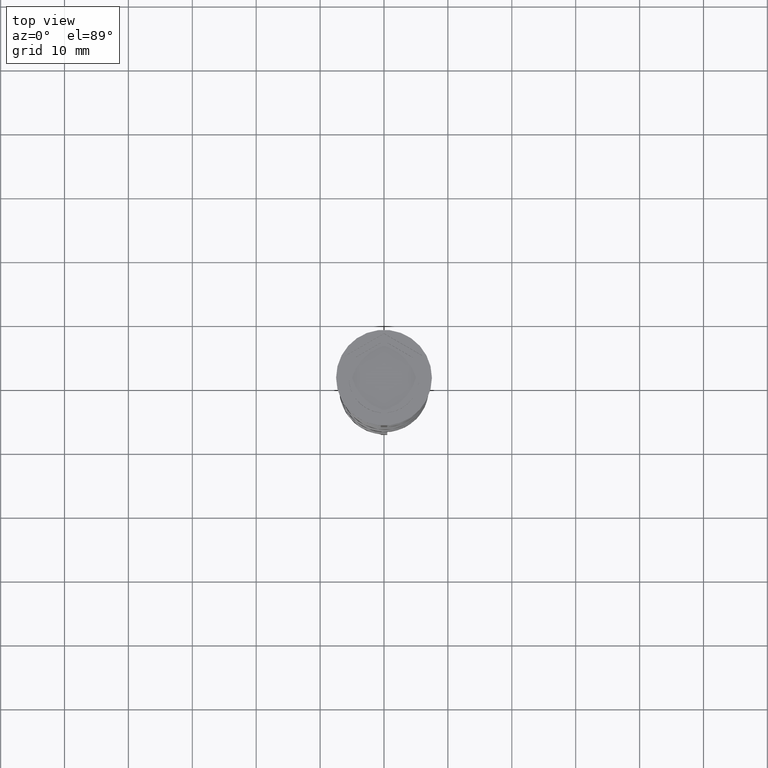
[diagram: clean part render]
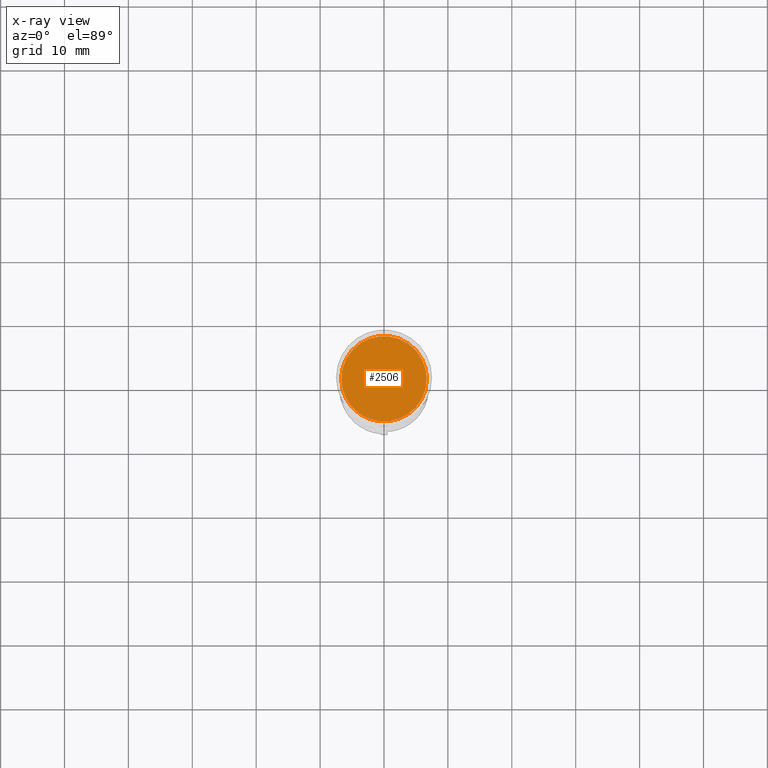
[diagram: x-ray — body ghosted, one internal face saturated and labeled with its STEP entity id]
A machine part, top view, then the same camera in x-ray: the body is ghosted and one INTERNAL B-rep face — a face not visible from any outside direction — is saturated and labeled: STEP entity #2506.
In plain terms, the highlighted planar face has unit normal (0, 0, -1).
Its self-contained STEP definition (entity closure, byte-faithful):
#101 = ORIENTED_EDGE ( 'NONE', *, *, #1192, .T. ) ;
#375 = DIRECTION ( 'NONE',  ( -0.000000000000000000, -0.000000000000000000, 1.000000000000000000 ) ) ;
#805 = VERTEX_POINT ( 'NONE', #3314 ) ;
#835 = PLANE ( 'NONE',  #2739 ) ;
#942 = CIRCLE ( 'NONE', #1408, 6.700000000000001066 ) ;
#1192 = EDGE_CURVE ( 'NONE', #805, #3130, #3022, .T. ) ;
#1258 = CARTESIAN_POINT ( 'NONE',  ( -6.700000000000001066, 0.000000000000000000, -10.50000000000000178 ) ) ;
#1391 = DIRECTION ( 'NONE',  ( -1.000000000000000000, 0.000000000000000000, -0.000000000000000000 ) ) ;
#1408 = AXIS2_PLACEMENT_3D ( 'NONE', #1997, #2593, #3111 ) ;
#1503 = AXIS2_PLACEMENT_3D ( 'NONE', #2860, #375, #2039 ) ;
#1671 = CARTESIAN_POINT ( 'NONE',  ( 0.000000000000000000, 0.000000000000000000, -10.50000000000000178 ) ) ;
#1816 = ORIENTED_EDGE ( 'NONE', *, *, #1941, .T. ) ;
#1941 = EDGE_CURVE ( 'NONE', #3130, #805, #942, .T. ) ;
#1997 = CARTESIAN_POINT ( 'NONE',  ( 0.000000000000000000, 0.000000000000000000, -10.50000000000000178 ) ) ;
#2039 = DIRECTION ( 'NONE',  ( -1.000000000000000000, 0.000000000000000000, 0.000000000000000000 ) ) ;
#2073 = EDGE_LOOP ( 'NONE', ( #1816, #101 ) ) ;
#2506 = ADVANCED_FACE ( 'NONE', ( #3324 ), #835, .F. ) ;
#2593 = DIRECTION ( 'NONE',  ( -0.000000000000000000, -0.000000000000000000, 1.000000000000000000 ) ) ;
#2739 = AXIS2_PLACEMENT_3D ( 'NONE', #1671, #3101, #1391 ) ;
#2860 = CARTESIAN_POINT ( 'NONE',  ( 0.000000000000000000, 0.000000000000000000, -10.50000000000000178 ) ) ;
#3022 = CIRCLE ( 'NONE', #1503, 6.700000000000001066 ) ;
#3101 = DIRECTION ( 'NONE',  ( 0.000000000000000000, 0.000000000000000000, -1.000000000000000000 ) ) ;
#3111 = DIRECTION ( 'NONE',  ( -1.000000000000000000, 0.000000000000000000, 0.000000000000000000 ) ) ;
#3130 = VERTEX_POINT ( 'NONE', #1258 ) ;
#3314 = CARTESIAN_POINT ( 'NONE',  ( 6.700000000000001066, 8.388830574159370862E-16, -10.50000000000000178 ) ) ;
#3324 = FACE_OUTER_BOUND ( 'NONE', #2073, .T. ) ;